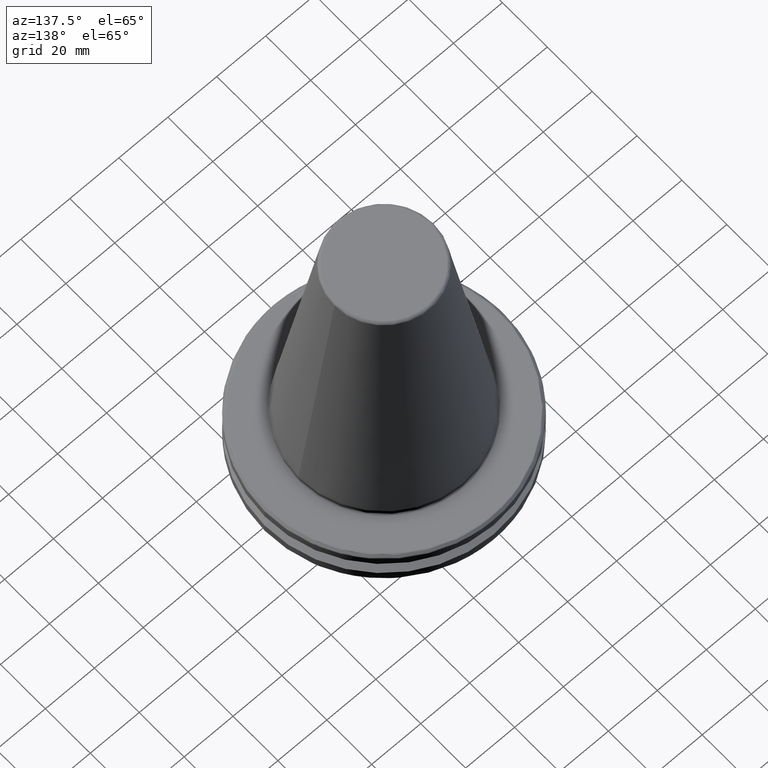
[diagram: clean part render]
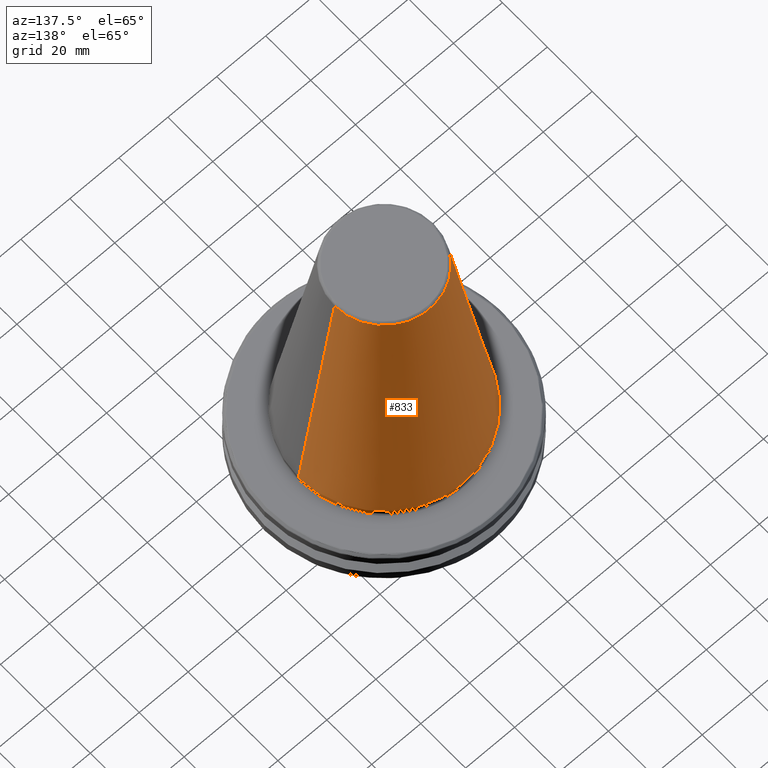
[diagram: same view with one face highlighted and labeled with its STEP entity id]
A machine part, auxiliary view. The second image highlights one B-rep face of the part: STEP entity #833.
In plain terms, the highlighted conical surface has half-angle 8.297 deg.
Its self-contained STEP definition (entity closure, byte-faithful):
#20 = ORIENTED_EDGE ( 'NONE', *, *, #2421, .T. ) ;
#65 = DIRECTION ( 'NONE',  ( -0.1443082272673070200, 0.0000000000000000000, -0.9895327864921743500 ) ) ;
#81 = DIRECTION ( 'NONE',  ( -0.0000000000000000000, -0.0000000000000000000, 1.000000000000000000 ) ) ;
#113 = DIRECTION ( 'NONE',  ( 0.0000000000000000000, 0.0000000000000000000, -1.000000000000000000 ) ) ;
#227 = ORIENTED_EDGE ( 'NONE', *, *, #1737, .T. ) ;
#459 = LINE ( 'NONE', #565, #2868 ) ;
#487 = AXIS2_PLACEMENT_3D ( 'NONE', #1599, #81, #1820 ) ;
#523 = EDGE_CURVE ( 'NONE', #2124, #556, #2674, .T. ) ;
#556 = VERTEX_POINT ( 'NONE', #1697 ) ;
#565 = CARTESIAN_POINT ( 'NONE',  ( -34.92499999999999700, 0.0000000000000000000, -1.387778780781445700E-014 ) ) ;
#587 = CARTESIAN_POINT ( 'NONE',  ( -34.92500000000000400, 4.277078946022131700E-015, 0.0000000000000000000 ) ) ;
#666 = CIRCLE ( 'NONE', #1875, 20.21110778703756600 ) ;
#833 = ADVANCED_FACE ( 'NONE', ( #925 ), #844, .T. ) ;
#844 = CONICAL_SURFACE ( 'NONE', #1159, 34.92499999999999700, 0.1448138465474190200 ) ;
#925 = FACE_OUTER_BOUND ( 'NONE', #1581, .T. ) ;
#1159 = AXIS2_PLACEMENT_3D ( 'NONE', #2510, #113, #2183 ) ;
#1332 = CARTESIAN_POINT ( 'NONE',  ( 0.0000000000000000000, 0.0000000000000000000, 100.8943082272673000 ) ) ;
#1581 = EDGE_LOOP ( 'NONE', ( #20, #1814, #227, #2515 ) ) ;
#1595 = DIRECTION ( 'NONE',  ( -1.000000000000000000, 0.0000000000000000000, 0.0000000000000000000 ) ) ;
#1599 = CARTESIAN_POINT ( 'NONE',  ( 0.0000000000000000000, 0.0000000000000000000, 0.0000000000000000000 ) ) ;
#1697 = CARTESIAN_POINT ( 'NONE',  ( 34.92500000000000400, 0.0000000000000000000, 0.0000000000000000000 ) ) ;
#1737 = EDGE_CURVE ( 'NONE', #556, #1762, #2609, .T. ) ;
#1754 = DIRECTION ( 'NONE',  ( 0.1443082272673070200, 1.767266086135363300E-017, -0.9895327864921743500 ) ) ;
#1762 = VERTEX_POINT ( 'NONE', #587 ) ;
#1779 = CARTESIAN_POINT ( 'NONE',  ( 34.92499999999999700, 4.277078946022130900E-015, -1.387778780781445700E-014 ) ) ;
#1814 = ORIENTED_EDGE ( 'NONE', *, *, #523, .T. ) ;
#1820 = DIRECTION ( 'NONE',  ( -1.000000000000000000, 0.0000000000000000000, 0.0000000000000000000 ) ) ;
#1875 = AXIS2_PLACEMENT_3D ( 'NONE', #1332, #2940, #1595 ) ;
#2124 = VERTEX_POINT ( 'NONE', #2146 ) ;
#2146 = CARTESIAN_POINT ( 'NONE',  ( 20.21110778703756900, 3.376112895941950600E-015, 100.8943082272673000 ) ) ;
#2183 = DIRECTION ( 'NONE',  ( -1.000000000000000000, 0.0000000000000000000, 0.0000000000000000000 ) ) ;
#2236 = CARTESIAN_POINT ( 'NONE',  ( -20.21110778703756600, 0.0000000000000000000, 100.8943082272673000 ) ) ;
#2421 = EDGE_CURVE ( 'NONE', #2545, #2124, #666, .T. ) ;
#2510 = CARTESIAN_POINT ( 'NONE',  ( 0.0000000000000000000, 0.0000000000000000000, -1.387778780781445700E-014 ) ) ;
#2515 = ORIENTED_EDGE ( 'NONE', *, *, #2563, .F. ) ;
#2545 = VERTEX_POINT ( 'NONE', #2236 ) ;
#2563 = EDGE_CURVE ( 'NONE', #2545, #1762, #459, .T. ) ;
#2609 = CIRCLE ( 'NONE', #487, 34.92499999999999700 ) ;
#2674 = LINE ( 'NONE', #1779, #2861 ) ;
#2861 = VECTOR ( 'NONE', #1754, 1000.000000000000000 ) ;
#2868 = VECTOR ( 'NONE', #65, 1000.000000000000000 ) ;
#2940 = DIRECTION ( 'NONE',  ( 0.0000000000000000000, 0.0000000000000000000, -1.000000000000000000 ) ) ;